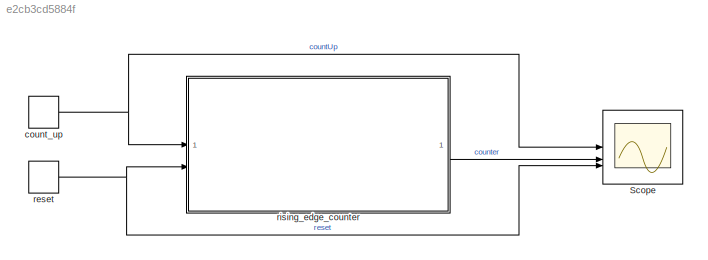
MODEL slx_e2cb3cd5884f
KIND model
CONFIG AbsTol = auto
CONFIG EnableMultiTasking = off
CONFIG FixedStep = auto
CONFIG MaxStep = auto
CONFIG MinStep = auto
CONFIG RelTol = 1e-3
CONFIG SampleTimeConstraint = Unconstrained
CONFIG SolverName = FixedStepAuto
CONFIG StartTime = 0.0
CONFIG StopTime = 50
BLOCK [Scope] Scope
  Floating = off
  NumInputPorts = 3
  ScopeSpecificationString = Simulink.scopes.TimeScopeBlockCfg('CurrentConfiguration', extmgr.ConfigurationSet(extmgr.Configuration('Core','General UI',true),extmgr.Configuration('Core','Source UI',true),extmgr.Configuration('Sources','WiredSimulink',true),extmgr.Configuration('Visuals','Time Domain',true,'SerializedDisplays',{struct('MinYLimReal','-0.125','MaxYLimReal','1.125','YLabelReal','','MinYLimMag','0.00000','MaxYLimM...<+2735ch>
BLOCK [DiscretePulseGenerator] count_up
  PulseType = Time based
  PulseWidth = 5
BLOCK [DiscretePulseGenerator] reset
  Period = 20
  PulseType = Time based
  PulseWidth = 20
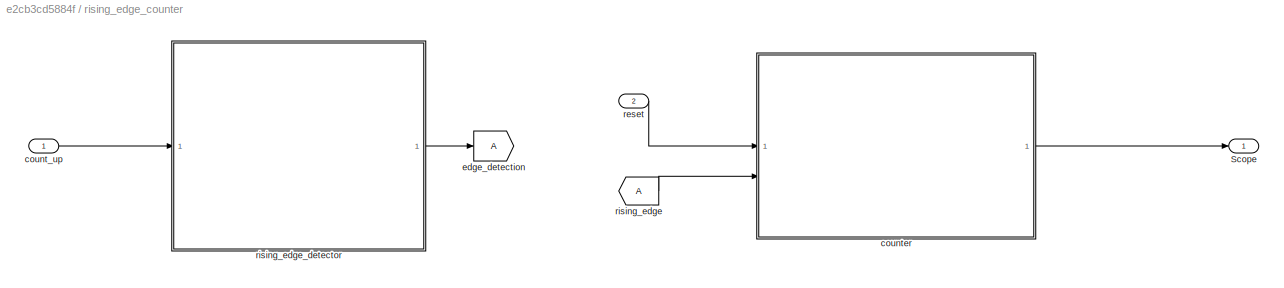
BLOCK [SubSystem] rising_edge_counter
BLOCK [Outport] rising_edge_counter/Scope
BLOCK [Inport] rising_edge_counter/count_up
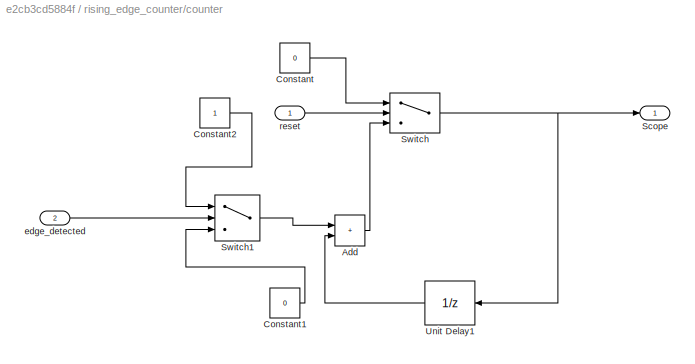
BLOCK [SubSystem] rising_edge_counter/counter
BLOCK [Sum] rising_edge_counter/counter/Add
  IconShape = rectangular
BLOCK [Constant] rising_edge_counter/counter/Constant
  Value = 0
BLOCK [Constant] rising_edge_counter/counter/Constant1
  Value = 0
BLOCK [Constant] rising_edge_counter/counter/Constant2
BLOCK [Outport] rising_edge_counter/counter/Scope
BLOCK [Switch] rising_edge_counter/counter/Switch
  Criteria = u2 ~= 0
  InputSameDT = off
  SaturateOnIntegerOverflow = off
BLOCK [Switch] rising_edge_counter/counter/Switch1
  Criteria = u2 ~= 0
  InputSameDT = off
  SaturateOnIntegerOverflow = off
BLOCK [UnitDelay] rising_edge_counter/counter/Unit Delay1
  HasFrameUpgradeWarning = on
  SampleTime = -1
BLOCK [Inport] rising_edge_counter/counter/edge_detected
  Port = 2
BLOCK [Inport] rising_edge_counter/counter/reset
BLOCK [Goto] rising_edge_counter/edge_detection
BLOCK [Inport] rising_edge_counter/reset
  Port = 2
BLOCK [From] rising_edge_counter/rising_edge
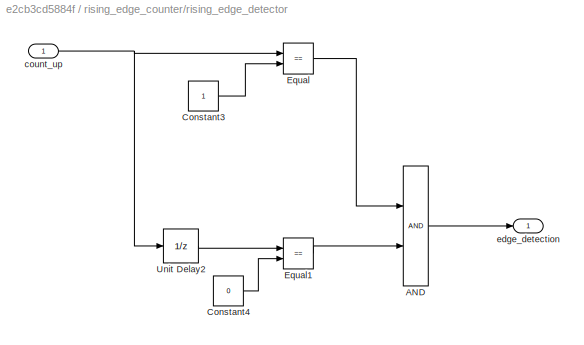
BLOCK [SubSystem] rising_edge_counter/rising_edge_detector
BLOCK [Logic] rising_edge_counter/rising_edge_detector/AND
  AllPortsSameDT = off
  OutDataTypeStr = boolean
BLOCK [Constant] rising_edge_counter/rising_edge_detector/Constant3
BLOCK [Constant] rising_edge_counter/rising_edge_detector/Constant4
  Value = 0
BLOCK [RelationalOperator] rising_edge_counter/rising_edge_detector/Equal
  InputSameDT = off
  Operator = ==
  OutDataTypeStr = boolean
  RndMeth = Simplest
BLOCK [RelationalOperator] rising_edge_counter/rising_edge_detector/Equal1
  InputSameDT = off
  Operator = ==
  OutDataTypeStr = boolean
  RndMeth = Simplest
BLOCK [UnitDelay] rising_edge_counter/rising_edge_detector/Unit Delay2
  HasFrameUpgradeWarning = on
  SampleTime = -1
BLOCK [Inport] rising_edge_counter/rising_edge_detector/count_up
BLOCK [Outport] rising_edge_counter/rising_edge_detector/edge_detection
NET count_up:1 -> Scope:1, rising_edge_counter:1
NET reset:1 -> Scope:3, rising_edge_counter:2
LINE rising_edge_counter/count_up:1 -> rising_edge_counter/rising_edge_detector:1
LINE rising_edge_counter/counter/Add:1 -> rising_edge_counter/counter/Switch:3
LINE rising_edge_counter/counter/Constant1:1 -> rising_edge_counter/counter/Switch1:3
LINE rising_edge_counter/counter/Constant2:1 -> rising_edge_counter/counter/Switch1:1
LINE rising_edge_counter/counter/Constant:1 -> rising_edge_counter/counter/Switch:1
LINE rising_edge_counter/counter/Switch1:1 -> rising_edge_counter/counter/Add:1
NET rising_edge_counter/counter/Switch:1 -> rising_edge_counter/counter/Scope:1, rising_edge_counter/counter/Unit Delay1:1
LINE rising_edge_counter/counter/Unit Delay1:1 -> rising_edge_counter/counter/Add:2
LINE rising_edge_counter/counter/edge_detected:1 -> rising_edge_counter/counter/Switch1:2
LINE rising_edge_counter/counter/reset:1 -> rising_edge_counter/counter/Switch:2
LINE rising_edge_counter/counter:1 -> rising_edge_counter/Scope:1
LINE rising_edge_counter/reset:1 -> rising_edge_counter/counter:1
LINE rising_edge_counter/rising_edge:1 -> rising_edge_counter/counter:2
LINE rising_edge_counter/rising_edge_detector/AND:1 -> rising_edge_counter/rising_edge_detector/edge_detection:1
LINE rising_edge_counter/rising_edge_detector/Constant3:1 -> rising_edge_counter/rising_edge_detector/Equal:2
LINE rising_edge_counter/rising_edge_detector/Constant4:1 -> rising_edge_counter/rising_edge_detector/Equal1:2
LINE rising_edge_counter/rising_edge_detector/Equal1:1 -> rising_edge_counter/rising_edge_detector/AND:2
LINE rising_edge_counter/rising_edge_detector/Equal:1 -> rising_edge_counter/rising_edge_detector/AND:1
LINE rising_edge_counter/rising_edge_detector/Unit Delay2:1 -> rising_edge_counter/rising_edge_detector/Equal1:1
NET rising_edge_counter/rising_edge_detector/count_up:1 -> rising_edge_counter/rising_edge_detector/Equal:1, rising_edge_counter/rising_edge_detector/Unit Delay2:1
LINE rising_edge_counter/rising_edge_detector:1 -> rising_edge_counter/edge_detection:1
LINE rising_edge_counter:1 -> Scope:2
note: NET lines group one-source signal fan-out (src -> all destinations, sorted); 1:1 wires keep LINE
